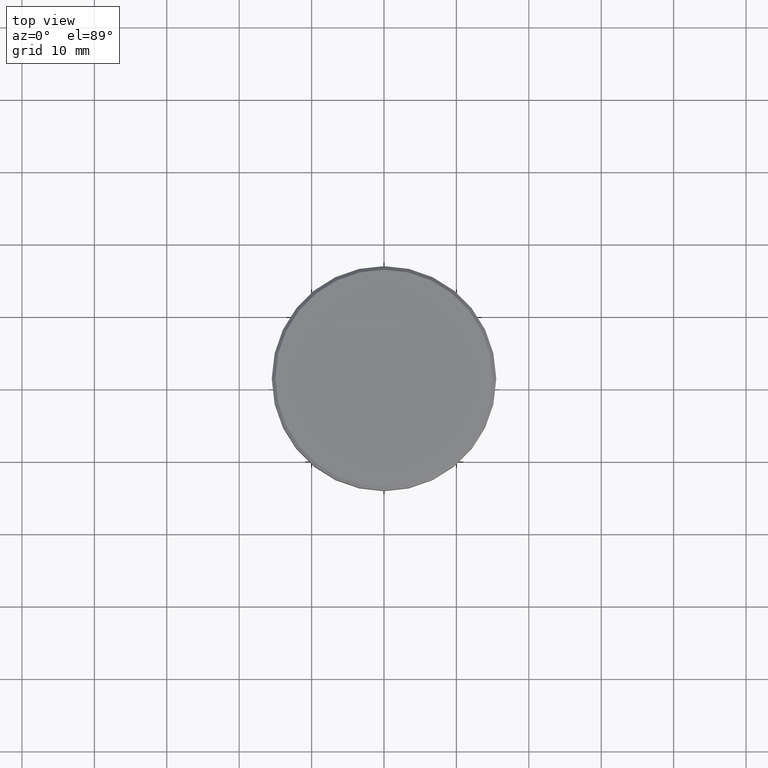
[diagram: clean part render]
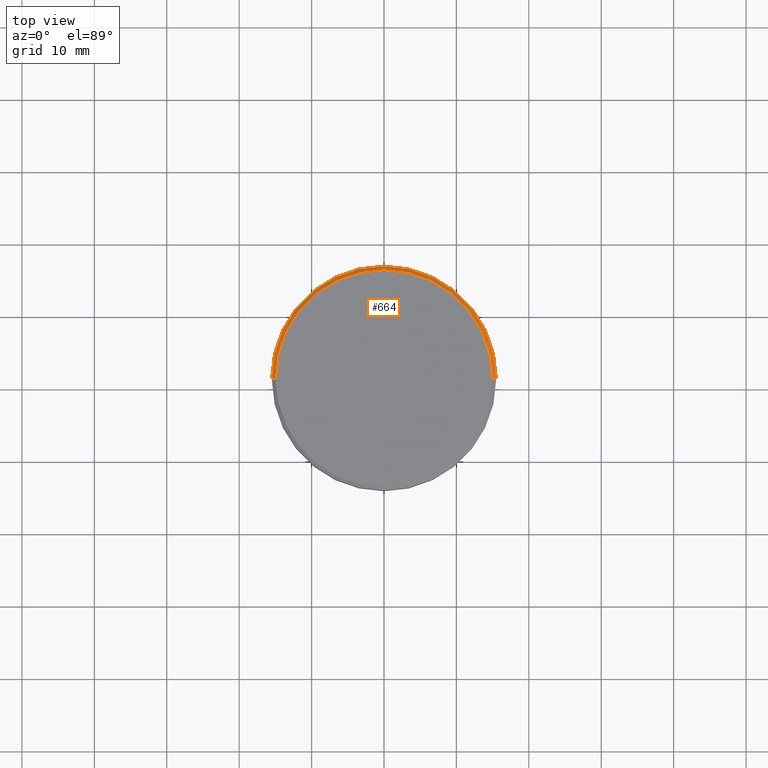
[diagram: same view with one face highlighted and labeled with its STEP entity id]
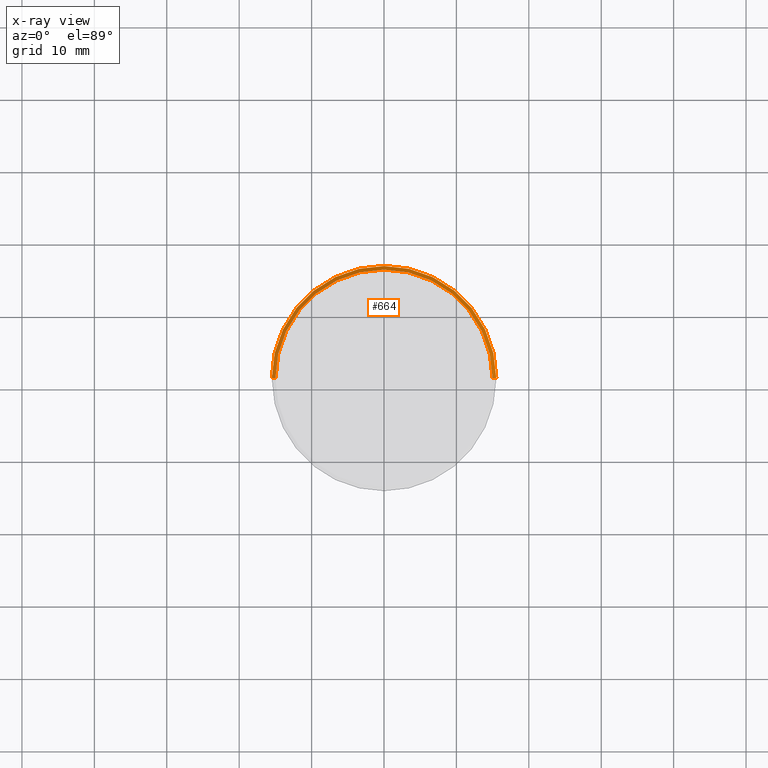
[diagram: x-ray of the same camera — body ghosted, the highlighted face saturated]
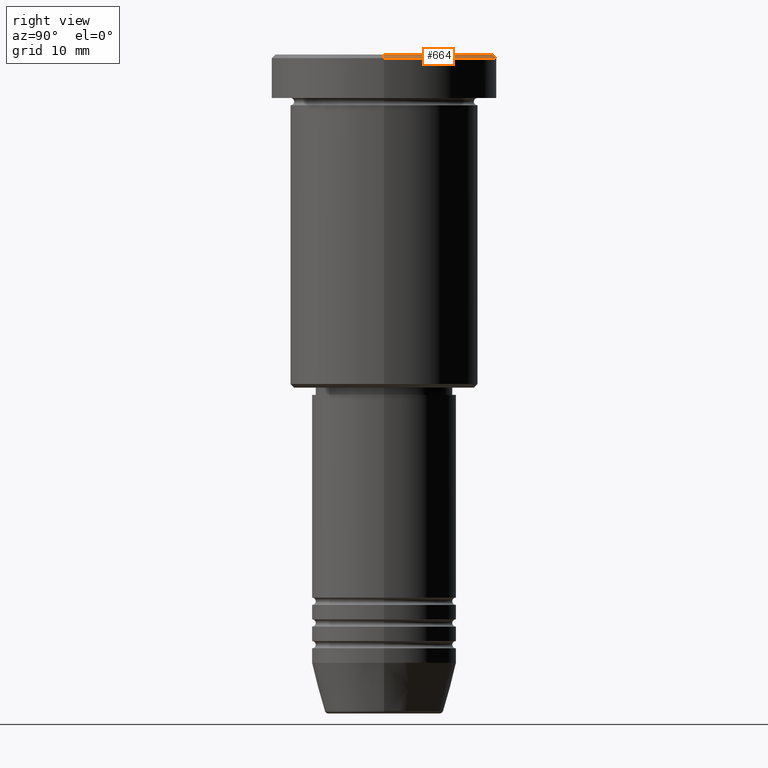
[diagram: same view with one face highlighted and labeled with its STEP entity id]
A machine part, top view. The second image highlights one B-rep face of the part: STEP entity #664.
The next image is the same camera in x-ray: the body ghosted, the highlighted face saturated — about 0% of this face is hidden behind the body in this view.
A second angle (right view) of the same face is appended — the face is thin or edge-on in the first view.
In plain terms, the highlighted conical surface has half-angle 45 deg.
Its self-contained STEP definition (entity closure, byte-faithful):
#14 = LINE ( 'NONE', #373, #564 ) ;
#20 = DIRECTION ( 'NONE',  ( 1.000000000000000000, 0.000000000000000000, 0.000000000000000000 ) ) ;
#23 = CARTESIAN_POINT ( 'NONE',  ( 0.000000000000000000, 0.000000000000000000, 0.000000000000000000 ) ) ;
#31 = AXIS2_PLACEMENT_3D ( 'NONE', #23, #1013, #192 ) ;
#37 = EDGE_CURVE ( 'NONE', #117, #375, #979, .T. ) ;
#44 = ORIENTED_EDGE ( 'NONE', *, *, #476, .F. ) ;
#76 = VECTOR ( 'NONE', #366, 1000.000000000000000 ) ;
#117 = VERTEX_POINT ( 'NONE', #819 ) ;
#118 = AXIS2_PLACEMENT_3D ( 'NONE', #571, #497, #849 ) ;
#123 = EDGE_CURVE ( 'NONE', #934, #117, #14, .T. ) ;
#192 = DIRECTION ( 'NONE',  ( 1.000000000000000000, 0.000000000000000000, 0.000000000000000000 ) ) ;
#194 = CARTESIAN_POINT ( 'NONE',  ( 0.000000000000000000, 0.000000000000000000, -0.4999999999999987232 ) ) ;
#321 = DIRECTION ( 'NONE',  ( -0.7071067811865487940, 0.000000000000000000, -0.7071067811865463515 ) ) ;
#326 = CIRCLE ( 'NONE', #31, 15.00000000000000000 ) ;
#332 = CARTESIAN_POINT ( 'NONE',  ( -15.00000000000000000, 0.000000000000000000, 0.000000000000000000 ) ) ;
#366 = DIRECTION ( 'NONE',  ( 0.7071067811865487940, 8.659560562354950115E-17, -0.7071067811865463515 ) ) ;
#373 = CARTESIAN_POINT ( 'NONE',  ( -15.00000000000000000, 0.000000000000000000, 0.000000000000000000 ) ) ;
#375 = VERTEX_POINT ( 'NONE', #520 ) ;
#476 = EDGE_CURVE ( 'NONE', #780, #934, #326, .T. ) ;
#494 = EDGE_CURVE ( 'NONE', #780, #375, #814, .T. ) ;
#497 = DIRECTION ( 'NONE',  ( 0.000000000000000000, 0.000000000000000000, -1.000000000000000000 ) ) ;
#520 = CARTESIAN_POINT ( 'NONE',  ( 15.50000000000000000, 0.000000000000000000, -0.4999999999999987232 ) ) ;
#543 = CARTESIAN_POINT ( 'NONE',  ( 15.00000000000000000, 1.836970198721029589E-15, 0.000000000000000000 ) ) ;
#564 = VECTOR ( 'NONE', #321, 1000.000000000000000 ) ;
#571 = CARTESIAN_POINT ( 'NONE',  ( 0.000000000000000000, 0.000000000000000000, 0.000000000000000000 ) ) ;
#664 = ADVANCED_FACE ( 'NONE', ( #760 ), #699, .T. ) ;
#699 = CONICAL_SURFACE ( 'NONE', #118, 15.00000000000000000, 0.7853981633974500554 ) ;
#753 = EDGE_LOOP ( 'NONE', ( #44, #773, #1144, #985 ) ) ;
#754 = AXIS2_PLACEMENT_3D ( 'NONE', #194, #1172, #20 ) ;
#760 = FACE_OUTER_BOUND ( 'NONE', #753, .T. ) ;
#773 = ORIENTED_EDGE ( 'NONE', *, *, #494, .T. ) ;
#780 = VERTEX_POINT ( 'NONE', #1056 ) ;
#814 = LINE ( 'NONE', #543, #76 ) ;
#819 = CARTESIAN_POINT ( 'NONE',  ( -15.50000000000000000, 1.898202538678397557E-15, -0.4999999999999987232 ) ) ;
#849 = DIRECTION ( 'NONE',  ( -1.000000000000000000, 0.000000000000000000, 0.000000000000000000 ) ) ;
#934 = VERTEX_POINT ( 'NONE', #332 ) ;
#979 = CIRCLE ( 'NONE', #754, 15.50000000000000000 ) ;
#985 = ORIENTED_EDGE ( 'NONE', *, *, #123, .F. ) ;
#1013 = DIRECTION ( 'NONE',  ( -0.000000000000000000, -0.000000000000000000, 1.000000000000000000 ) ) ;
#1056 = CARTESIAN_POINT ( 'NONE',  ( 15.00000000000000000, 1.867586368699713376E-15, 0.000000000000000000 ) ) ;
#1144 = ORIENTED_EDGE ( 'NONE', *, *, #37, .F. ) ;
#1172 = DIRECTION ( 'NONE',  ( 0.000000000000000000, 0.000000000000000000, -1.000000000000000000 ) ) ;